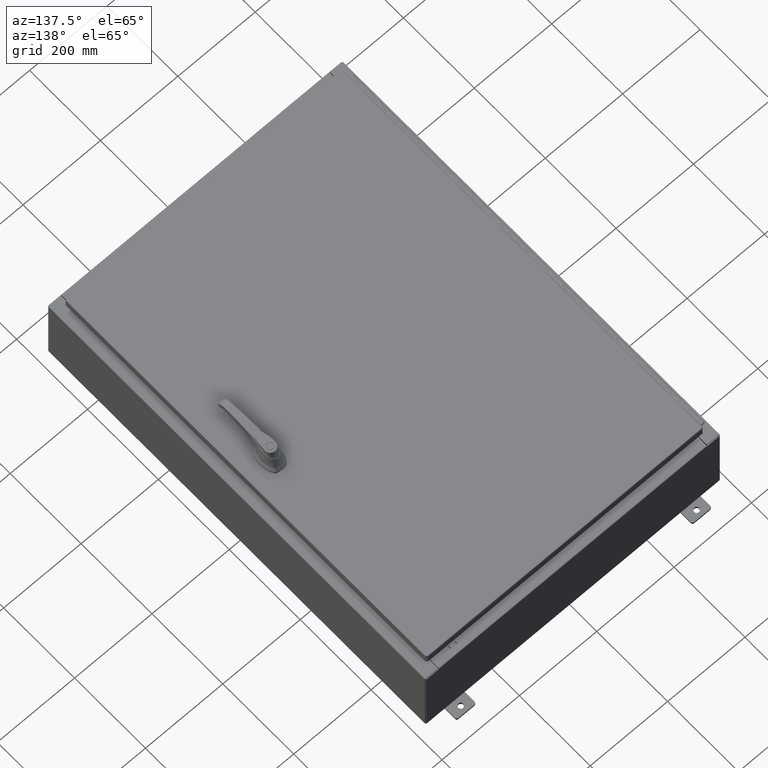
[diagram: clean part render]
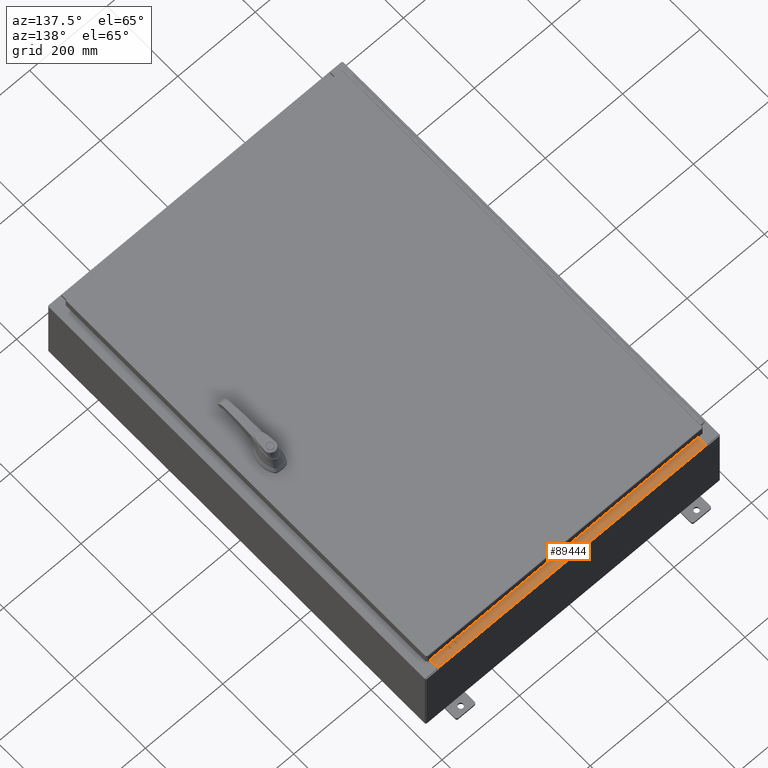
[diagram: same view with one face highlighted and labeled with its STEP entity id]
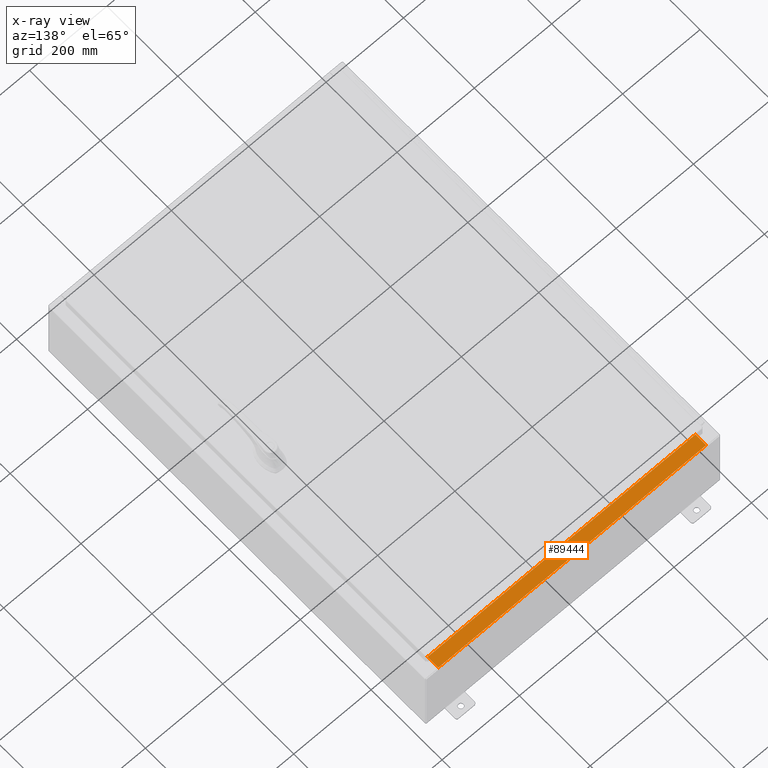
[diagram: x-ray of the same camera — body ghosted, the highlighted face saturated]
A machine part, auxiliary view. The second image highlights one B-rep face of the part: STEP entity #89444.
The next image is the same camera in x-ray: the body ghosted, the highlighted face saturated — about 0% of this face is hidden behind the body in this view.
In plain terms, the highlighted planar face has unit normal (0, 0, 1).
Its self-contained STEP definition (entity closure, byte-faithful):
#2703 = EDGE_CURVE ( 'NONE', #107241, #67022, #82197, .T. ) ;
#4109 = PLANE ( 'NONE',  #112895 ) ;
#8049 = EDGE_CURVE ( 'NONE', #67022, #124104, #64427, .T. ) ;
#21674 = ORIENTED_EDGE ( 'NONE', *, *, #8049, .F. ) ;
#31685 = CARTESIAN_POINT ( 'NONE',  ( 13.63720000000000400, -0.08769999999999965300, 4.000000000000000000 ) ) ;
#33899 = CARTESIAN_POINT ( 'NONE',  ( 0.0000000000000000000, 1.425992975200418500E-014, 4.000000000000000000 ) ) ;
#34320 = DIRECTION ( 'NONE',  ( 0.0000000000000000000, 3.566381192773190000E-015, 1.000000000000000000 ) ) ;
#35143 = LINE ( 'NONE', #121655, #111026 ) ;
#37899 = EDGE_CURVE ( 'NONE', #124284, #124104, #35143, .T. ) ;
#38119 = CARTESIAN_POINT ( 'NONE',  ( 13.63720000000000400, -1.300299999999999800, 4.000000000000004400 ) ) ;
#54474 = ORIENTED_EDGE ( 'NONE', *, *, #2703, .F. ) ;
#57554 = ORIENTED_EDGE ( 'NONE', *, *, #109363, .F. ) ;
#64427 = LINE ( 'NONE', #121132, #117133 ) ;
#67022 = VERTEX_POINT ( 'NONE', #128834 ) ;
#68479 = CARTESIAN_POINT ( 'NONE',  ( -13.63719999999999800, -0.08770000000000000000, 4.000000000000000000 ) ) ;
#77579 = DIRECTION ( 'NONE',  ( -0.0000000000000000000, 1.000000000000000000, -3.566381192773190000E-015 ) ) ;
#79090 = VECTOR ( 'NONE', #121027, 39.37007874015748100 ) ;
#82197 = LINE ( 'NONE', #117174, #79090 ) ;
#84687 = LINE ( 'NONE', #38119, #98554 ) ;
#89444 = ADVANCED_FACE ( 'NONE', ( #90307 ), #4109, .T. ) ;
#90307 = FACE_OUTER_BOUND ( 'NONE', #123213, .T. ) ;
#97363 = DIRECTION ( 'NONE',  ( -0.0000000000000000000, -1.000000000000000000, 3.566381192773190000E-015 ) ) ;
#98554 = VECTOR ( 'NONE', #97363, 39.37007874015748100 ) ;
#102922 = CARTESIAN_POINT ( 'NONE',  ( 13.63720000000000400, -1.287299999999999900, 4.000000000000004400 ) ) ;
#103501 = DIRECTION ( 'NONE',  ( 0.0000000000000000000, -1.000000000000000000, 3.566381192773190000E-015 ) ) ;
#107241 = VERTEX_POINT ( 'NONE', #102922 ) ;
#109363 = EDGE_CURVE ( 'NONE', #124284, #107241, #84687, .T. ) ;
#111026 = VECTOR ( 'NONE', #111664, 39.37007874015748100 ) ;
#111664 = DIRECTION ( 'NONE',  ( -1.000000000000000000, 2.003232330437526000E-017, -7.144290108027600900E-032 ) ) ;
#112895 = AXIS2_PLACEMENT_3D ( 'NONE', #33899, #34320, #103501 ) ;
#117133 = VECTOR ( 'NONE', #77579, 39.37007874015748100 ) ;
#117174 = CARTESIAN_POINT ( 'NONE',  ( 13.63720000000000400, -1.287299999999999900, 4.000000000000003600 ) ) ;
#121027 = DIRECTION ( 'NONE',  ( -1.000000000000000000, 0.0000000000000000000, 0.0000000000000000000 ) ) ;
#121132 = CARTESIAN_POINT ( 'NONE',  ( -13.63719999999999800, -0.07469999999999973900, 4.000000000000000000 ) ) ;
#121655 = CARTESIAN_POINT ( 'NONE',  ( -1.756834753793995900E-018, -0.08770000000000000000, 4.000000000000000900 ) ) ;
#123213 = EDGE_LOOP ( 'NONE', ( #21674, #54474, #57554, #125784 ) ) ;
#124104 = VERTEX_POINT ( 'NONE', #68479 ) ;
#124284 = VERTEX_POINT ( 'NONE', #31685 ) ;
#125784 = ORIENTED_EDGE ( 'NONE', *, *, #37899, .T. ) ;
#128834 = CARTESIAN_POINT ( 'NONE',  ( -13.63719999999999800, -1.287299999999999200, 4.000000000000004400 ) ) ;